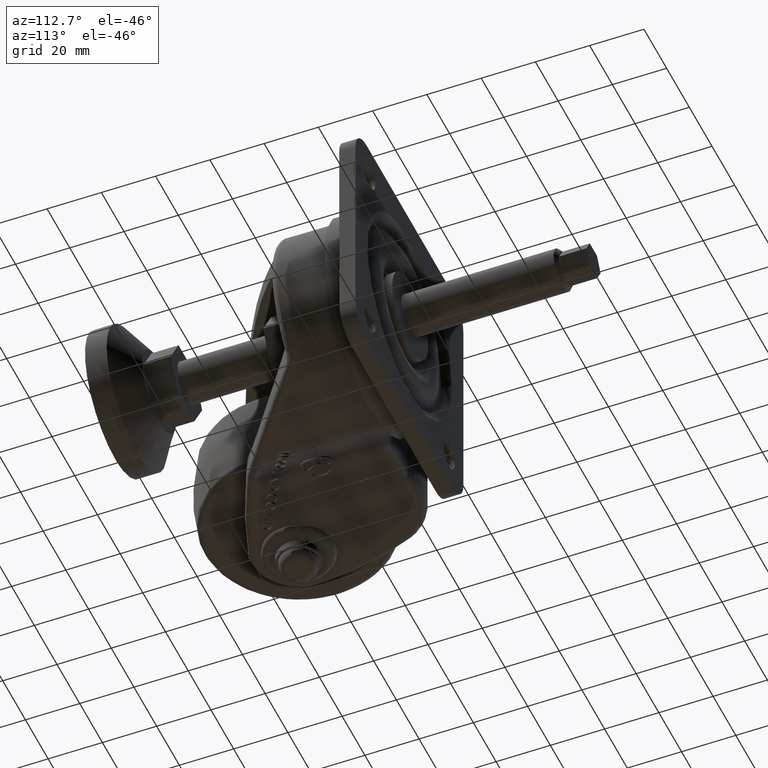
[diagram: clean part render]
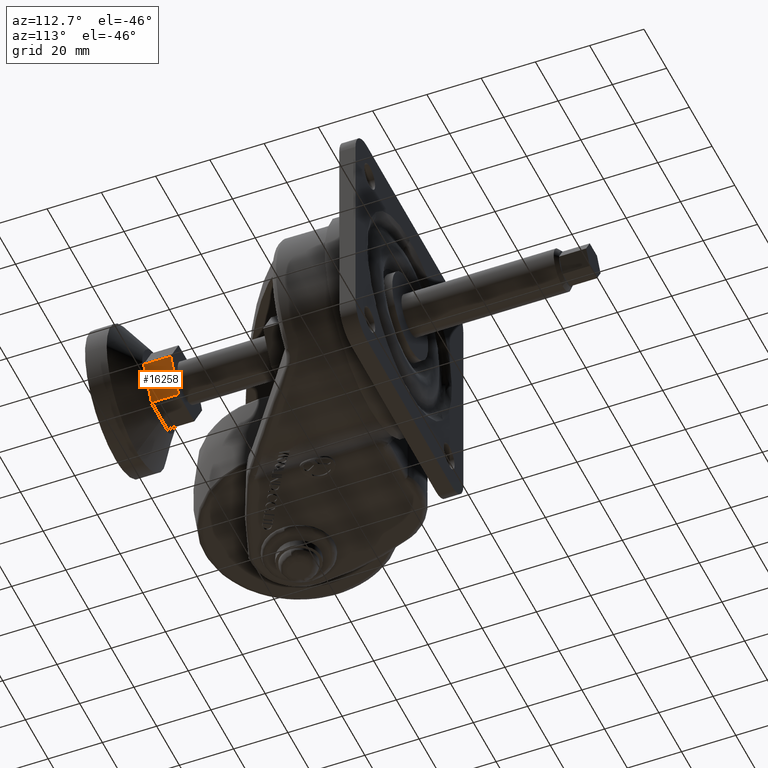
[diagram: same view with one face highlighted and labeled with its STEP entity id]
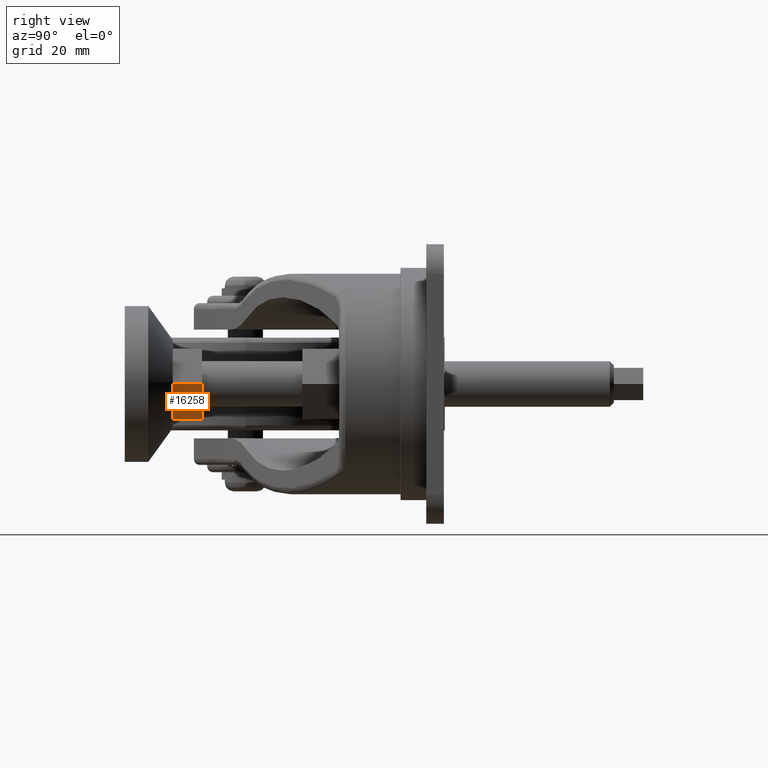
[diagram: same view with one face highlighted and labeled with its STEP entity id]
A machine part, auxiliary view. The second image highlights one B-rep face of the part: STEP entity #16258.
A second angle (right view) of the same face is appended — the face is thin or edge-on in the first view.
In plain terms, the highlighted face is a freeform B-spline surface patch.
Its self-contained STEP definition (entity closure, byte-faithful):
#549 = CARTESIAN_POINT ( 'NONE',  ( 6.928203228933590196, 12.80000000000000071, -12.00000000000000000 ) ) ;
#1693 = CARTESIAN_POINT ( 'NONE',  ( 13.85640645853384179, 12.80000000000000071, 0.000000000000000000 ) ) ;
#1826 = ORIENTED_EDGE ( 'NONE', *, *, #23966, .F. ) ;
#1984 = ORIENTED_EDGE ( 'NONE', *, *, #10459, .F. ) ;
#2535 = EDGE_CURVE ( 'NONE', #9149, #8289, #20744, .T. ) ;
#3213 = CARTESIAN_POINT ( 'NONE',  ( 13.85640646100000062, 2.799999999999999822, 0.000000000000000000 ) ) ;
#3799 = CARTESIAN_POINT ( 'NONE',  ( 6.928203228933590196, 12.80000000000000071, -12.00000000000000000 ) ) ;
#3836 = CARTESIAN_POINT ( 'NONE',  ( 13.85640646100000062, 12.80000000000000071, 0.000000000000000000 ) ) ;
#3966 = B_SPLINE_CURVE_WITH_KNOTS ( 'NONE', 3,
 ( #20346, #14834, #19607, #24254 ),
 .UNSPECIFIED., .F., .F.,
 ( 4, 4 ),
 ( 0.000000000000000000, 1.000000000000000000 ),
 .UNSPECIFIED. ) ;
#5317 = EDGE_LOOP ( 'NONE', ( #16368, #1826, #24344, #1984 ) ) ;
#5497 = B_SPLINE_CURVE_WITH_KNOTS ( 'NONE', 1,
 ( #17454, #15376 ),
 .UNSPECIFIED., .F., .F.,
 ( 2, 2 ),
 ( 0.000000000000000000, 1.000000000000000000 ),
 .UNSPECIFIED. ) ;
#8289 = VERTEX_POINT ( 'NONE', #549 ) ;
#9149 = VERTEX_POINT ( 'NONE', #15900 ) ;
#10459 = EDGE_CURVE ( 'NONE', #9149, #26213, #3966, .T. ) ;
#10681 = EDGE_CURVE ( 'NONE', #15937, #26213, #5497, .T. ) ;
#12233 = CARTESIAN_POINT ( 'NONE',  ( 13.85640645853384179, 12.80000000000000071, 0.000000000000000000 ) ) ;
#13788 = B_SPLINE_CURVE_WITH_KNOTS ( 'NONE', 3,
 ( #1693, #30717, #14115, #23530 ),
 .UNSPECIFIED., .F., .F.,
 ( 4, 4 ),
 ( 0.000000000000000000, 1.000000000000000000 ),
 .UNSPECIFIED. ) ;
#14115 = CARTESIAN_POINT ( 'NONE',  ( 9.237604302401020817, 12.80000000000000071, -8.000000000000000000 ) ) ;
#14418 = B_SPLINE_SURFACE_WITH_KNOTS ( 'NONE', 1, 1, ( 
 ( #15929, #25680 ),
 ( #3213, #3836 ) ),
 .UNSPECIFIED., .F., .F., .F.,
 ( 2, 2 ),
 ( 2, 2 ),
 ( 0.000000000000000000, 1.000000000000000000 ),
 ( 0.000000000000000000, 1.000000000000000000 ),
 .UNSPECIFIED. ) ;
#14834 = CARTESIAN_POINT ( 'NONE',  ( 9.237604299879999203, 2.800000000000000266, -8.000000000079998230 ) ) ;
#15376 = CARTESIAN_POINT ( 'NONE',  ( 13.85640646233333939, 2.799999999999999822, 0.000000000000000000 ) ) ;
#15900 = CARTESIAN_POINT ( 'NONE',  ( 6.928203225773329699, 2.799999999999999822, -12.00000000004000000 ) ) ;
#15929 = CARTESIAN_POINT ( 'NONE',  ( 6.928203230000000268, 2.799999999999999822, -12.00000000000000000 ) ) ;
#15937 = VERTEX_POINT ( 'NONE', #12233 ) ;
#16258 = ADVANCED_FACE ( 'NONE', ( #30476 ), #14418, .F. ) ;
#16368 = ORIENTED_EDGE ( 'NONE', *, *, #2535, .T. ) ;
#17454 = CARTESIAN_POINT ( 'NONE',  ( 13.85640645853384179, 12.80000000000000071, 0.000000000000000000 ) ) ;
#18443 = CARTESIAN_POINT ( 'NONE',  ( 6.928203225773329699, 2.799999999999999822, -12.00000000004000000 ) ) ;
#19607 = CARTESIAN_POINT ( 'NONE',  ( 11.54700538244000008, 2.799999999999999822, -4.000000000039999115 ) ) ;
#20346 = CARTESIAN_POINT ( 'NONE',  ( 6.928203225773329699, 2.799999999999999822, -12.00000000004000000 ) ) ;
#20744 = B_SPLINE_CURVE_WITH_KNOTS ( 'NONE', 1,
 ( #18443, #3799 ),
 .UNSPECIFIED., .F., .F.,
 ( 2, 2 ),
 ( 0.000000000000000000, 1.000000000000000000 ),
 .UNSPECIFIED. ) ;
#23530 = CARTESIAN_POINT ( 'NONE',  ( 6.928203228933590196, 12.80000000000000071, -12.00000000000000000 ) ) ;
#23966 = EDGE_CURVE ( 'NONE', #15937, #8289, #13788, .T. ) ;
#24254 = CARTESIAN_POINT ( 'NONE',  ( 13.85640646233333939, 2.799999999999999822, 0.000000000000000000 ) ) ;
#24344 = ORIENTED_EDGE ( 'NONE', *, *, #10681, .T. ) ;
#24665 = CARTESIAN_POINT ( 'NONE',  ( 13.85640646233333939, 2.799999999999999822, 0.000000000000000000 ) ) ;
#25680 = CARTESIAN_POINT ( 'NONE',  ( 6.928203230000000268, 12.80000000000000071, -12.00000000000000000 ) ) ;
#26213 = VERTEX_POINT ( 'NONE', #24665 ) ;
#30476 = FACE_OUTER_BOUND ( 'NONE', #5317, .T. ) ;
#30717 = CARTESIAN_POINT ( 'NONE',  ( 11.54700537800127869, 12.80000000000000071, -4.000000000000000000 ) ) ;